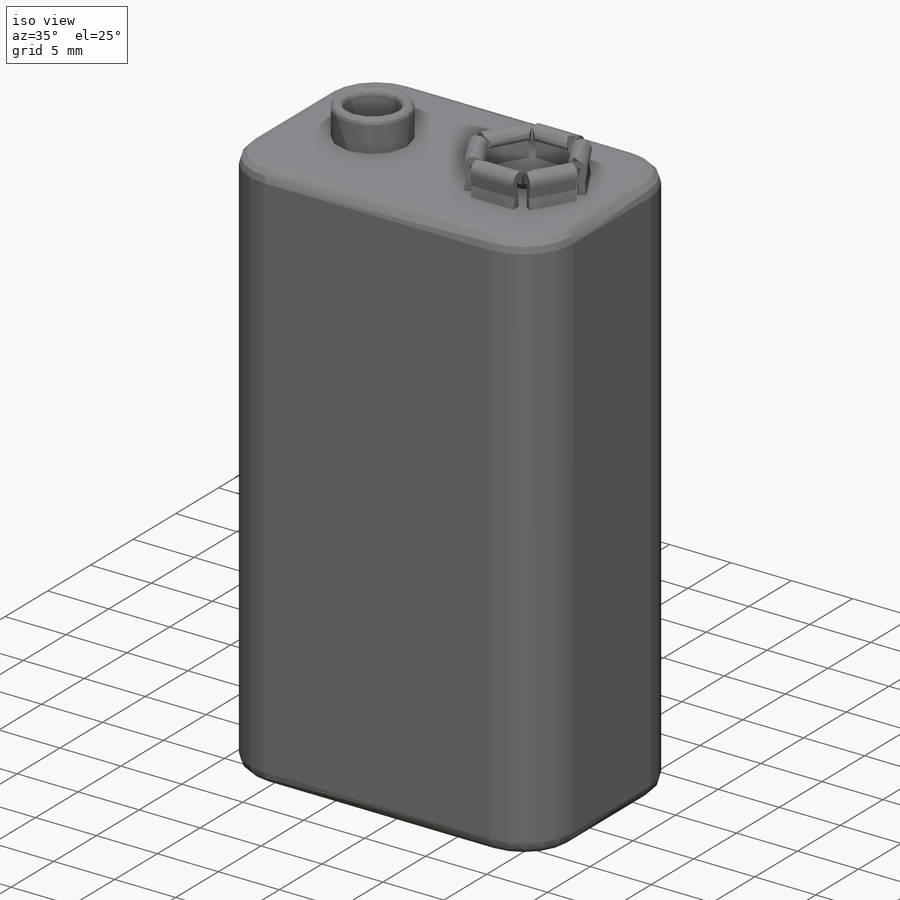
[diagram: iso view]
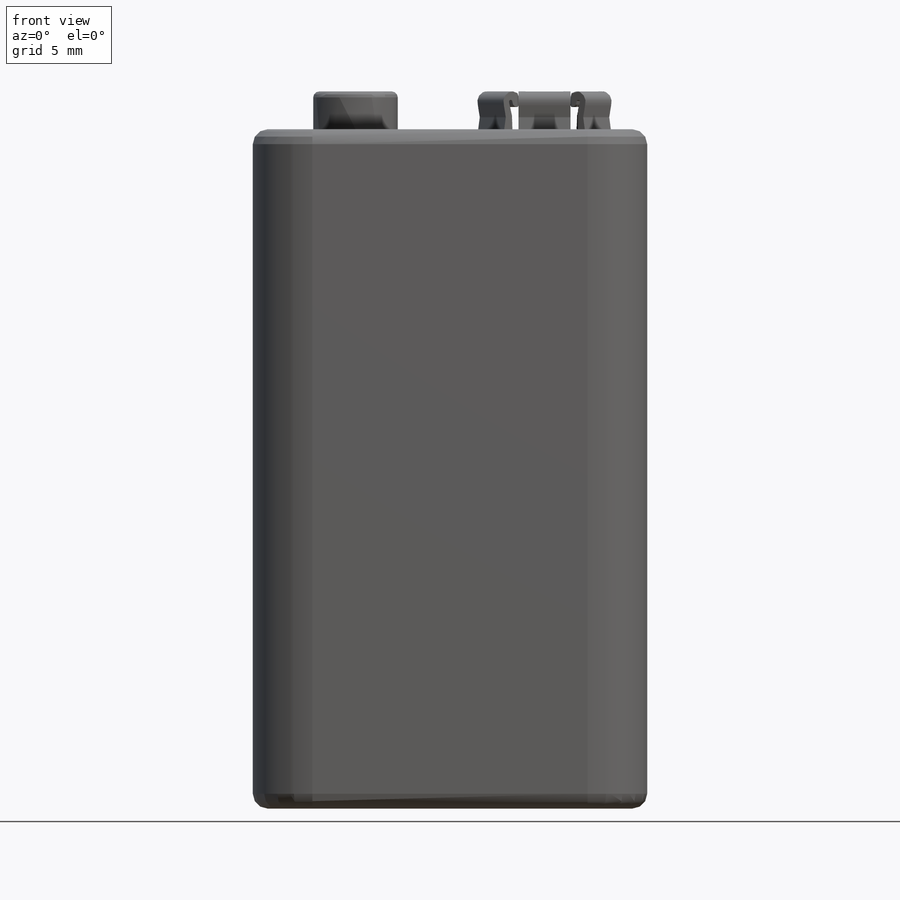
[diagram: front view]
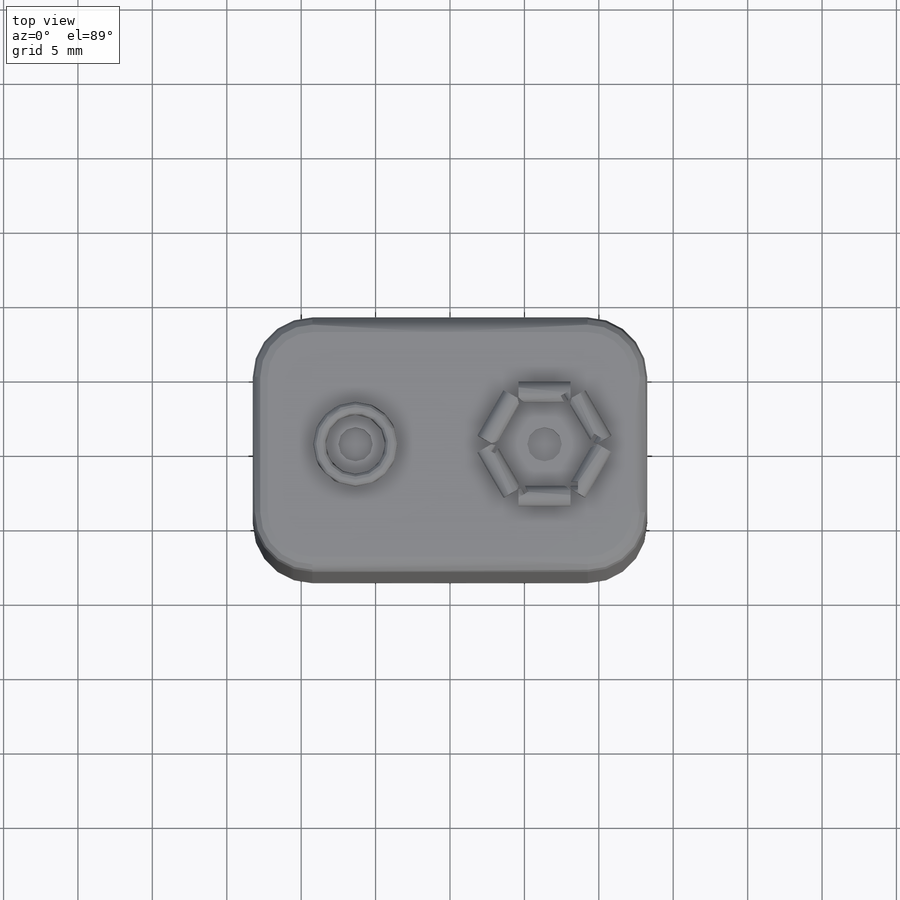
[diagram: top view]
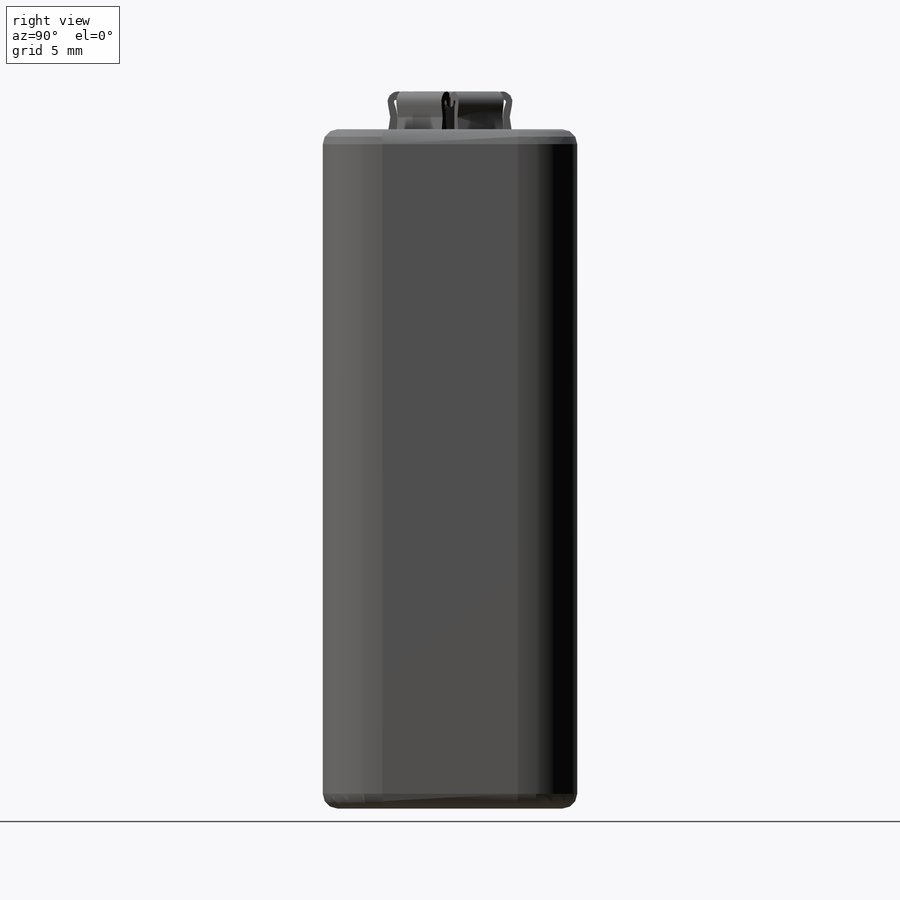
[diagram: right view]
SOLIDWORKS PART (.sldprt)
format: sldprt  version: not decoded by parser v0  size: 674,304 bytes
history: native  units: mm
features: sketch x6, extrude x3, cut_extrude x3, fillet x2, material x1, pattern_circular x1 (+13 scaffold rows collapsed)
feature tree (29):
  scaffold x13  (default folders/planes/origin — collapsed)
  material  "Duranickel(R) 301"
  sketch  "Sketch1"  dims[D1=4.0mm D2=26.5mm D3=17.1mm D4=8.55mm]
  extrude  "Extrude1"  Depth=45.65mm
  fillet  "Fillet1"  Radius=1mm
  sketch  "Sketch2"  dims[D3=2.3mm D1=6.35mm D2=12.7mm]
  cut_extrude  "Cut-Extrude1"  Depth=1mm
  sketch  "Sketch3"  dims[D1=5.68mm D2=4.0mm]
  extrude  "Extrude2"  Depth=2.54mm
  fillet  "Fillet2"  Radius=0.4mm
  sketch  "Sketch4"  dims[c1.D1=2.8mm c1.D2=1.4mm c1.D3=4.6mm c1.D4=3.5mm c2.D1=2.8mm]
  extrude  "Extrude3"  Depth=2.54mm
  sketch  "Sketch5"
  cut_extrude  "Cut-Extrude2"  Depth=4mm
  sketch  "Sketch6"
  cut_extrude  "Cut-Extrude3"  Depth=4mm
  pattern_circular  "CirPattern2"  Count=6 Angle=360deg
decode coverage: 13 of 15 modeling features carry decoded parameters
note: suppression state not decoded; provenance and decode notes live in map.json
